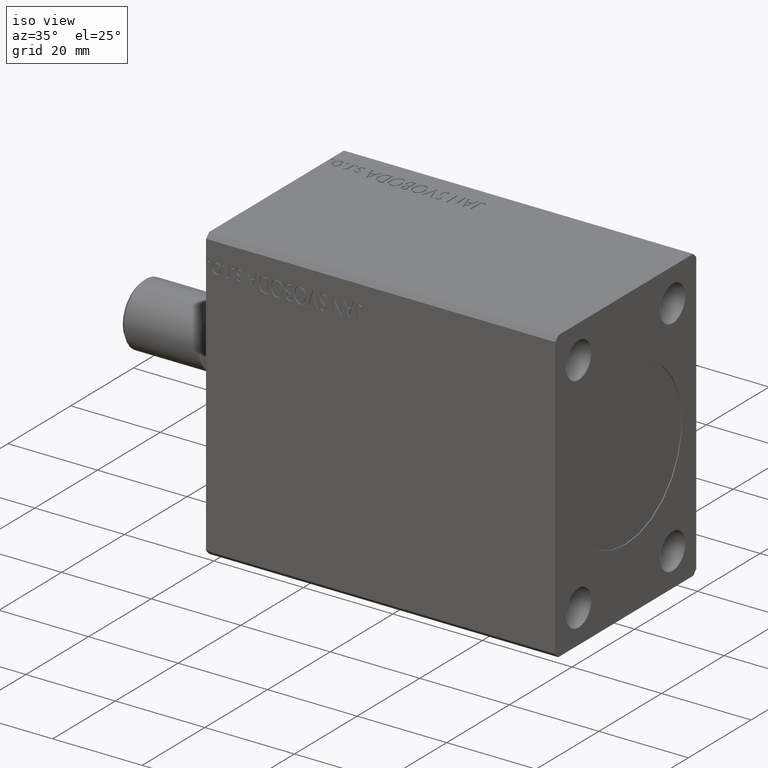
[diagram: clean part render]
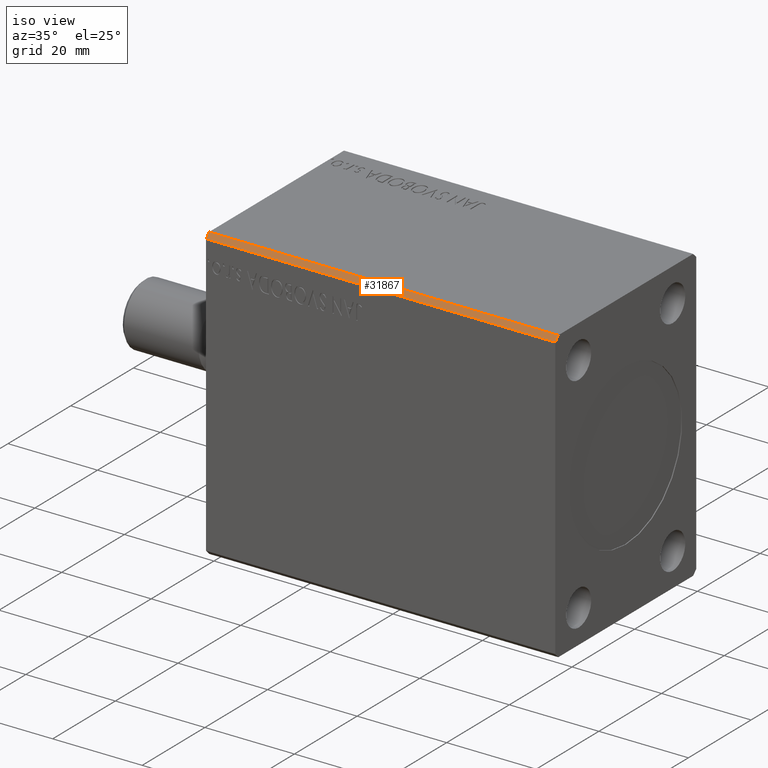
[diagram: same view with one face highlighted and labeled with its STEP entity id]
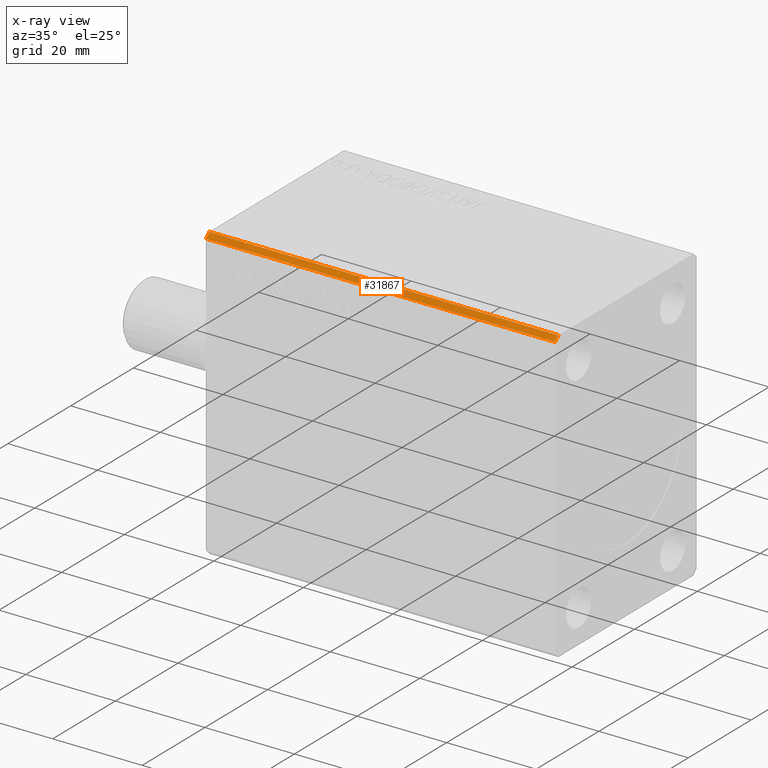
[diagram: x-ray of the same camera — body ghosted, the highlighted face saturated]
A machine part, iso view. The second image highlights one B-rep face of the part: STEP entity #31867.
The next image is the same camera in x-ray: the body ghosted, the highlighted face saturated — about 0% of this face is hidden behind the body in this view.
In plain terms, the highlighted planar face has unit normal (0, 0.7071, -0.7071).
Its self-contained STEP definition (entity closure, byte-faithful):
#1631 = DIRECTION ( 'NONE',  ( 0.000000000000000000, -0.7071067811865474617, -0.7071067811865474617 ) ) ;
#5117 = ORIENTED_EDGE ( 'NONE', *, *, #36033, .F. ) ;
#5448 = LINE ( 'NONE', #32823, #22859 ) ;
#7341 = LINE ( 'NONE', #34509, #32055 ) ;
#9065 = EDGE_CURVE ( 'NONE', #33699, #28286, #5448, .T. ) ;
#10464 = CARTESIAN_POINT ( 'NONE',  ( 0.000000000000000000, -21.50000000000001421, 32.50000000000000000 ) ) ;
#13910 = ORIENTED_EDGE ( 'NONE', *, *, #35108, .T. ) ;
#14828 = VECTOR ( 'NONE', #1631, 1000.000000000000114 ) ;
#17294 = VERTEX_POINT ( 'NONE', #23767 ) ;
#17676 = ORIENTED_EDGE ( 'NONE', *, *, #34486, .F. ) ;
#18294 = PLANE ( 'NONE',  #29782 ) ;
#18371 = CARTESIAN_POINT ( 'NONE',  ( 0.000000000000000000, -21.50000000000001421, 32.50000000000000000 ) ) ;
#19031 = LINE ( 'NONE', #18371, #43517 ) ;
#19813 = VERTEX_POINT ( 'NONE', #32572 ) ;
#21439 = FACE_OUTER_BOUND ( 'NONE', #29537, .T. ) ;
#22859 = VECTOR ( 'NONE', #38926, 1000.000000000000000 ) ;
#22952 = CARTESIAN_POINT ( 'NONE',  ( 78.00000000000000000, -21.50000000000001421, 32.50000000000000000 ) ) ;
#23767 = CARTESIAN_POINT ( 'NONE',  ( 78.00000000000000000, -22.50000000000001776, 31.50000000000000000 ) ) ;
#28286 = VERTEX_POINT ( 'NONE', #10464 ) ;
#28405 = CARTESIAN_POINT ( 'NONE',  ( 78.00000000000000000, -21.50000000000001421, 32.50000000000000000 ) ) ;
#29537 = EDGE_LOOP ( 'NONE', ( #13910, #5117, #17676, #41361 ) ) ;
#29782 = AXIS2_PLACEMENT_3D ( 'NONE', #35135, #31312, #38958 ) ;
#31312 = DIRECTION ( 'NONE',  ( 0.000000000000000000, 0.7071067811865475727, -0.7071067811865475727 ) ) ;
#31867 = ADVANCED_FACE ( 'NONE', ( #21439 ), #18294, .F. ) ;
#32055 = VECTOR ( 'NONE', #34954, 1000.000000000000000 ) ;
#32276 = DIRECTION ( 'NONE',  ( 0.000000000000000000, -0.7071067811865474617, -0.7071067811865474617 ) ) ;
#32572 = CARTESIAN_POINT ( 'NONE',  ( 0.000000000000000000, -22.50000000000001776, 31.50000000000000000 ) ) ;
#32823 = CARTESIAN_POINT ( 'NONE',  ( 78.00000000000000000, -21.50000000000001421, 32.50000000000000000 ) ) ;
#33699 = VERTEX_POINT ( 'NONE', #28405 ) ;
#34486 = EDGE_CURVE ( 'NONE', #33699, #17294, #39581, .T. ) ;
#34509 = CARTESIAN_POINT ( 'NONE',  ( 78.00000000000000000, -22.50000000000001776, 31.50000000000000000 ) ) ;
#34954 = DIRECTION ( 'NONE',  ( -1.000000000000000000, -0.000000000000000000, -0.000000000000000000 ) ) ;
#35108 = EDGE_CURVE ( 'NONE', #28286, #19813, #19031, .T. ) ;
#35135 = CARTESIAN_POINT ( 'NONE',  ( 78.00000000000000000, -21.50000000000001421, 32.50000000000000000 ) ) ;
#36033 = EDGE_CURVE ( 'NONE', #17294, #19813, #7341, .T. ) ;
#38926 = DIRECTION ( 'NONE',  ( -1.000000000000000000, -0.000000000000000000, -0.000000000000000000 ) ) ;
#38958 = DIRECTION ( 'NONE',  ( 0.000000000000000000, 0.7071067811865474617, 0.7071067811865474617 ) ) ;
#39581 = LINE ( 'NONE', #22952, #14828 ) ;
#41361 = ORIENTED_EDGE ( 'NONE', *, *, #9065, .T. ) ;
#43517 = VECTOR ( 'NONE', #32276, 1000.000000000000114 ) ;